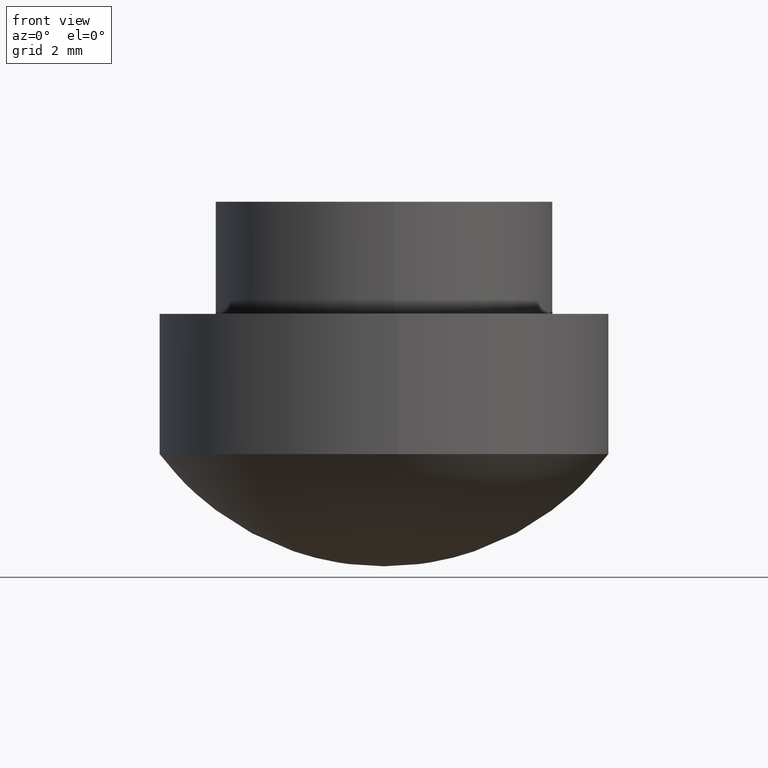
[diagram: clean part render]
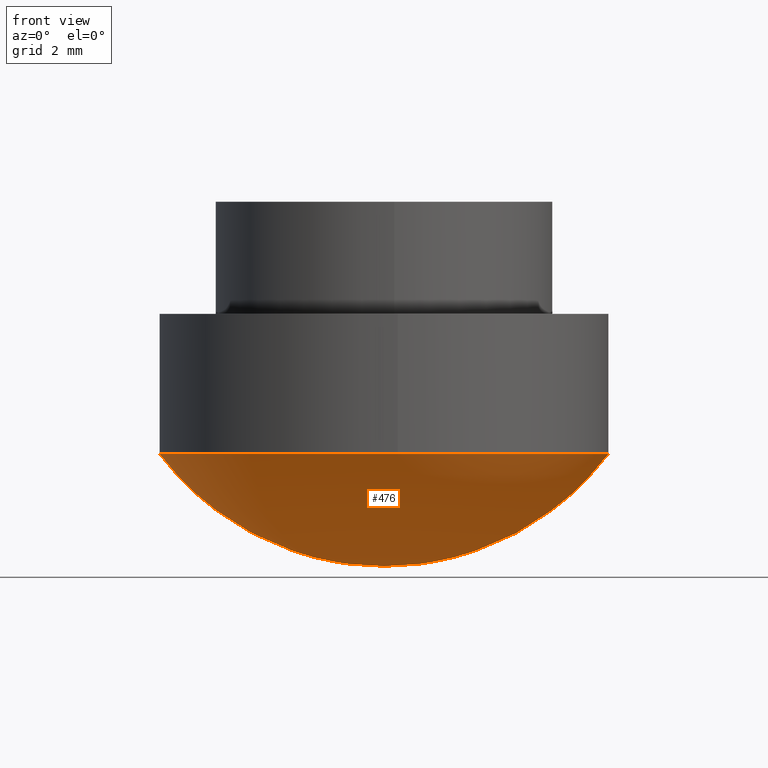
[diagram: same view with one face highlighted and labeled with its STEP entity id]
A machine part, front view. The second image highlights one B-rep face of the part: STEP entity #476.
In plain terms, the highlighted face is a freeform B-spline surface patch.
Its self-contained STEP definition (entity closure, byte-faithful):
#286=CARTESIAN_POINT('',(0.488385492346112,-7.985078532225735,3.999999950550500));
#287=VERTEX_POINT('',#286);
#293=CARTESIAN_POINT('',(7.999999962912870,0.0,3.999999950550500));
#294=VERTEX_POINT('',#293);
#295=CARTESIAN_POINT('',(7.999999962912870,0.0,3.999999950550500));
#296=CARTESIAN_POINT('',(7.999999962912870,-7.525651165182715,3.999999950550501));
#297=CARTESIAN_POINT('',(0.488385492346112,-7.985078532225735,3.999999950550500));
#305=(BOUNDED_CURVE()B_SPLINE_CURVE(2,(#295,#296,#297),.UNSPECIFIED.,.F.,.U.)B_SPLINE_CURVE_WITH_KNOTS((3,3),(0.500000000000000,0.739333023226661),.UNSPECIFIED.)CURVE()GEOMETRIC_REPRESENTATION_ITEM()RATIONAL_B_SPLINE_CURVE((1.0,0.719603921835154,0.976072172375043))REPRESENTATION_ITEM(''));
#306=EDGE_CURVE('',#294,#287,#305,.T.);
#308=CARTESIAN_POINT('',(-0.944268877604578,7.944076777179117,3.999999950550500));
#309=VERTEX_POINT('',#308);
#310=CARTESIAN_POINT('',(-0.944268877604578,7.944076777179117,3.999999950550499));
#311=CARTESIAN_POINT('',(-0.473790430425430,7.999999962912871,3.999999950550500));
#312=CARTESIAN_POINT('',(0.0,7.999999962912870,3.999999950550500));
#313=CARTESIAN_POINT('',(7.999999962912870,7.999999962912870,3.999999950550501));
#314=CARTESIAN_POINT('',(7.999999962912870,0.0,3.999999950550500));
#322=(BOUNDED_CURVE()B_SPLINE_CURVE(2,(#310,#311,#312,#313,#314),.UNSPECIFIED.,.F.,.U.)B_SPLINE_CURVE_WITH_KNOTS((3,2,3),(0.229562579808957,0.250000000000000,0.500000000000000),.UNSPECIFIED.)CURVE()GEOMETRIC_REPRESENTATION_ITEM()RATIONAL_B_SPLINE_CURVE((0.956026962527235,0.976056072864010,1.0,0.707106781186548,1.0))REPRESENTATION_ITEM(''));
#323=EDGE_CURVE('',#309,#294,#322,.T.);
#367=CARTESIAN_POINT('',(-7.999999962912870,0.0,3.999999950550500));
#368=VERTEX_POINT('',#367);
#369=CARTESIAN_POINT('',(-7.999999962912870,0.0,3.999999950550500));
#370=CARTESIAN_POINT('',(-7.999999962912868,7.105400675016465,3.999999950550500));
#371=CARTESIAN_POINT('',(-0.944268877604578,7.944076777179117,3.999999950550499));
#379=(BOUNDED_CURVE()B_SPLINE_CURVE(2,(#369,#370,#371),.UNSPECIFIED.,.F.,.U.)B_SPLINE_CURVE_WITH_KNOTS((3,3),(0.0,0.229562579808957),.UNSPECIFIED.)CURVE()GEOMETRIC_REPRESENTATION_ITEM()RATIONAL_B_SPLINE_CURVE((1.0,0.731050708322538,0.956026962527235))REPRESENTATION_ITEM(''));
#380=EDGE_CURVE('',#368,#309,#379,.T.);
#382=CARTESIAN_POINT('',(0.488385492346112,-7.985078532225735,3.999999950550500));
#383=CARTESIAN_POINT('',(0.244420690181673,-7.999999962912870,3.999999950550500));
#384=CARTESIAN_POINT('',(0.0,-7.999999962912870,3.999999950550500));
#385=CARTESIAN_POINT('',(-7.999999962912870,-7.999999962912870,3.999999950550501));
#386=CARTESIAN_POINT('',(-7.999999962912870,0.0,3.999999950550500));
#394=(BOUNDED_CURVE()B_SPLINE_CURVE(2,(#382,#383,#384,#385,#386),.UNSPECIFIED.,.F.,.U.)B_SPLINE_CURVE_WITH_KNOTS((3,2,3),(0.739333023226661,0.750000000000000,1.0),.UNSPECIFIED.)CURVE()GEOMETRIC_REPRESENTATION_ITEM()RATIONAL_B_SPLINE_CURVE((0.976072172375043,0.987502859351394,1.0,0.707106781186548,1.0))REPRESENTATION_ITEM(''));
#395=EDGE_CURVE('',#287,#368,#394,.T.);
#446=CARTESIAN_POINT('',(-6.853471896327415,6.853358555659610,7.538009042701919));
#447=CARTESIAN_POINT('',(-4.222475611669984,8.444811489568490,4.644147270144297));
#448=CARTESIAN_POINT('',(4.222475835462554,8.444811489568490,4.644147187664597));
#449=CARTESIAN_POINT('',(6.853472180370921,6.853358354755898,7.538009274148398));
#450=CARTESIAN_POINT('',(-8.444886322699713,4.222373322646664,4.644265225807698));
#451=CARTESIAN_POINT('',(-5.499500022563311,5.499408999574950,0.000000056774758));
#452=CARTESIAN_POINT('',(5.499500254962466,5.499408999574950,-0.000000050649690));
#453=CARTESIAN_POINT('',(8.444886569857316,4.222373170127541,4.644265615524161));
#454=CARTESIAN_POINT('',(-8.444886322699713,-4.222349674945175,4.644265221104967));
#455=CARTESIAN_POINT('',(-5.499500022563311,-5.499378196375985,0.000000050649710));
#456=CARTESIAN_POINT('',(5.499500254962466,-5.499378196375985,-0.000000056774738));
#457=CARTESIAN_POINT('',(8.444886569857316,-4.222349522426905,4.644265610821430));
#458=CARTESIAN_POINT('',(-6.853486359133368,-6.853334642363947,7.537982736667539));
#459=CARTESIAN_POINT('',(-4.222486591504515,-8.444786158949555,4.644107330438700));
#460=CARTESIAN_POINT('',(4.222486815297158,-8.444786158949555,4.644107247958783));
#461=CARTESIAN_POINT('',(6.853486643176638,-6.853334441460513,7.537982968115278));
#469=(BOUNDED_SURFACE()B_SPLINE_SURFACE(2,2,((#446,#450,#454,#458),(#447,#451,#455,#459),(#448,#452,#456,#460),(#449,#453,#457,#461)),.UNSPECIFIED.,.F.,.F.,.U.)B_SPLINE_SURFACE_WITH_KNOTS((3,1,3),(3,1,3),(0.156834663450718,9.669483172510137,19.182132421433931),(0.156991949313879,9.669483172510134,19.181921133762600),.UNSPECIFIED.)GEOMETRIC_REPRESENTATION_ITEM()RATIONAL_B_SPLINE_SURFACE(((1.604879987072847,1.302444994239294,1.302444994239294,1.604876600319553),(1.302434992833554,1.0,1.0,1.302431606080259),(1.302434992833554,1.0,1.0,1.302431606080259),(1.604880034119321,1.302445041285768,1.302445041285768,1.604876647366027)))REPRESENTATION_ITEM('')SURFACE());
#470=ORIENTED_EDGE('',*,*,#380,.T.);
#471=ORIENTED_EDGE('',*,*,#323,.T.);
#472=ORIENTED_EDGE('',*,*,#306,.T.);
#473=ORIENTED_EDGE('',*,*,#395,.T.);
#474=EDGE_LOOP('',(#470,#471,#472,#473));
#475=FACE_OUTER_BOUND('',#474,.T.);
#476=ADVANCED_FACE('',(#475),#469,.T.);